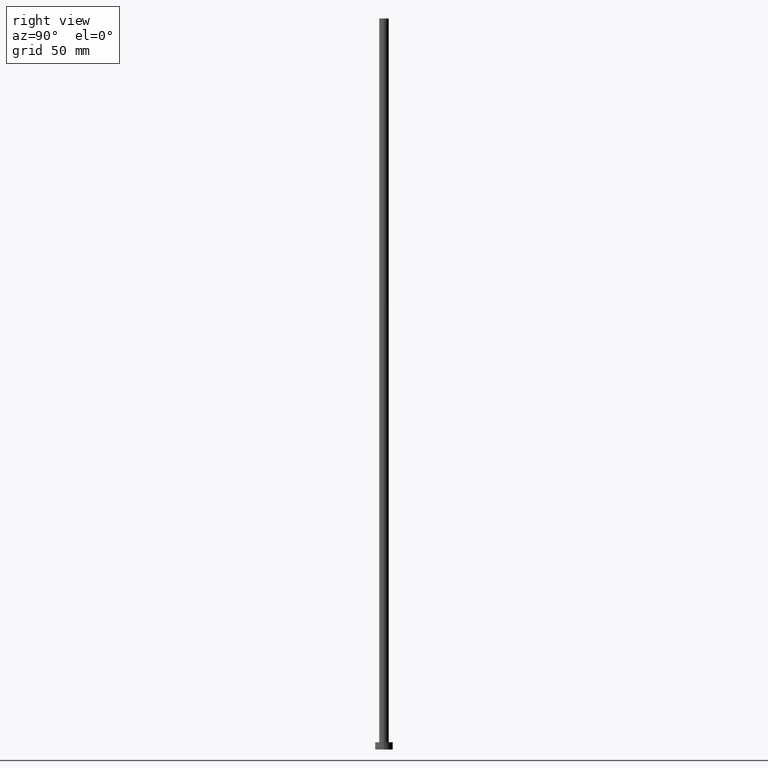
[diagram: clean part render]
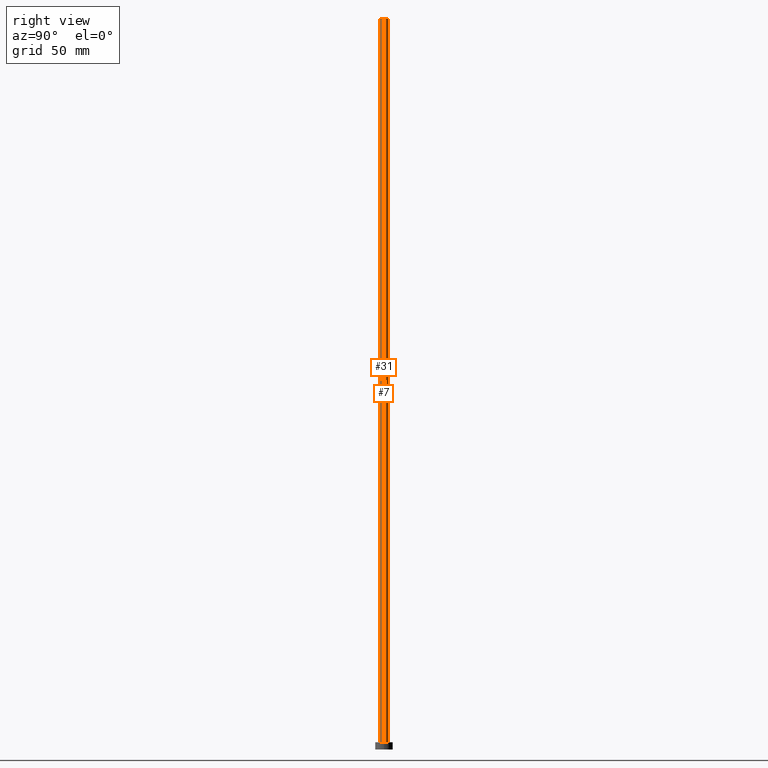
[diagram: same view with one multi-face feature highlighted, each face labeled with its STEP entity id]
A machine part, right view. The highlighted faces form ONE feature: a constant-radius fillet chain: 2 tangent blend faces with common blend radius 3.25 mm. The faces share edges in the B-rep.
Their STEP definitions:
[1] entity #7 (Cylinder):
#7 = ADVANCED_FACE ( 'NONE', ( #66 ), #220, .T. ) ;
#14 = DIRECTION ( 'NONE',  ( -0.000000000000000000, -0.000000000000000000, -1.000000000000000000 ) ) ;
#29 = ORIENTED_EDGE ( 'NONE', *, *, #130, .T. ) ;
#36 = DIRECTION ( 'NONE',  ( 0.000000000000000000, 0.000000000000000000, 1.000000000000000000 ) ) ;
#38 = EDGE_CURVE ( 'NONE', #76, #63, #207, .T. ) ;
#40 = EDGE_LOOP ( 'NONE', ( #133, #81, #29, #147 ) ) ;
#42 = DIRECTION ( 'NONE',  ( 1.000000000000000000, 0.000000000000000000, 0.000000000000000000 ) ) ;
#43 = AXIS2_PLACEMENT_3D ( 'NONE', #182, #36, #105 ) ;
#46 = VECTOR ( 'NONE', #163, 1000.000000000000000 ) ;
#54 = CARTESIAN_POINT ( 'NONE',  ( 3.250000000000000444, 3.980102097228898231E-16, 5.000000000000000000 ) ) ;
#55 = CARTESIAN_POINT ( 'NONE',  ( -3.250000000000000444, 0.000000000000000000, 500.0000000000000000 ) ) ;
#58 = CARTESIAN_POINT ( 'NONE',  ( 3.250000000000000444, 3.980102097228898231E-16, 500.0000000000000000 ) ) ;
#63 = VERTEX_POINT ( 'NONE', #54 ) ;
#66 = FACE_OUTER_BOUND ( 'NONE', #40, .T. ) ;
#75 = CARTESIAN_POINT ( 'NONE',  ( -3.250000000000000444, 0.000000000000000000, 500.0000000000000000 ) ) ;
#76 = VERTEX_POINT ( 'NONE', #58 ) ;
#78 = DIRECTION ( 'NONE',  ( -0.000000000000000000, -0.000000000000000000, -1.000000000000000000 ) ) ;
#81 = ORIENTED_EDGE ( 'NONE', *, *, #38, .T. ) ;
#86 = AXIS2_PLACEMENT_3D ( 'NONE', #196, #78, #153 ) ;
#90 = DIRECTION ( 'NONE',  ( 0.000000000000000000, 0.000000000000000000, 1.000000000000000000 ) ) ;
#97 = VERTEX_POINT ( 'NONE', #55 ) ;
#102 = CIRCLE ( 'NONE', #165, 3.250000000000000444 ) ;
#105 = DIRECTION ( 'NONE',  ( 1.000000000000000000, 0.000000000000000000, 0.000000000000000000 ) ) ;
#130 = EDGE_CURVE ( 'NONE', #63, #199, #140, .T. ) ;
#133 = ORIENTED_EDGE ( 'NONE', *, *, #237, .F. ) ;
#140 = CIRCLE ( 'NONE', #43, 3.250000000000000444 ) ;
#147 = ORIENTED_EDGE ( 'NONE', *, *, #211, .F. ) ;
#153 = DIRECTION ( 'NONE',  ( -1.000000000000000000, 0.000000000000000000, 0.000000000000000000 ) ) ;
#163 = DIRECTION ( 'NONE',  ( -0.000000000000000000, -0.000000000000000000, -1.000000000000000000 ) ) ;
#165 = AXIS2_PLACEMENT_3D ( 'NONE', #168, #90, #42 ) ;
#168 = CARTESIAN_POINT ( 'NONE',  ( 0.000000000000000000, 0.000000000000000000, 500.0000000000000000 ) ) ;
#182 = CARTESIAN_POINT ( 'NONE',  ( 0.000000000000000000, 0.000000000000000000, 5.000000000000000000 ) ) ;
#188 = VECTOR ( 'NONE', #14, 1000.000000000000000 ) ;
#192 = LINE ( 'NONE', #75, #188 ) ;
#196 = CARTESIAN_POINT ( 'NONE',  ( 0.000000000000000000, 0.000000000000000000, 500.0000000000000000 ) ) ;
#199 = VERTEX_POINT ( 'NONE', #231 ) ;
#207 = LINE ( 'NONE', #223, #46 ) ;
#211 = EDGE_CURVE ( 'NONE', #97, #199, #192, .T. ) ;
#220 = CYLINDRICAL_SURFACE ( 'NONE', #86, 3.250000000000000444 ) ;
#223 = CARTESIAN_POINT ( 'NONE',  ( 3.250000000000000444, 3.980102097228898231E-16, 500.0000000000000000 ) ) ;
#231 = CARTESIAN_POINT ( 'NONE',  ( -3.250000000000000444, 0.000000000000000000, 5.000000000000000000 ) ) ;
#237 = EDGE_CURVE ( 'NONE', #76, #97, #102, .T. ) ;
[2] entity #31 (Cylinder):
#1 = EDGE_CURVE ( 'NONE', #97, #76, #206, .T. ) ;
#4 = ORIENTED_EDGE ( 'NONE', *, *, #198, .T. ) ;
#14 = DIRECTION ( 'NONE',  ( -0.000000000000000000, -0.000000000000000000, -1.000000000000000000 ) ) ;
#15 = AXIS2_PLACEMENT_3D ( 'NONE', #101, #47, #174 ) ;
#21 = DIRECTION ( 'NONE',  ( 1.000000000000000000, 0.000000000000000000, 0.000000000000000000 ) ) ;
#31 = ADVANCED_FACE ( 'NONE', ( #219 ), #51, .T. ) ;
#38 = EDGE_CURVE ( 'NONE', #76, #63, #207, .T. ) ;
#46 = VECTOR ( 'NONE', #163, 1000.000000000000000 ) ;
#47 = DIRECTION ( 'NONE',  ( -0.000000000000000000, -0.000000000000000000, -1.000000000000000000 ) ) ;
#51 = CYLINDRICAL_SURFACE ( 'NONE', #15, 3.250000000000000444 ) ;
#54 = CARTESIAN_POINT ( 'NONE',  ( 3.250000000000000444, 3.980102097228898231E-16, 5.000000000000000000 ) ) ;
#55 = CARTESIAN_POINT ( 'NONE',  ( -3.250000000000000444, 0.000000000000000000, 500.0000000000000000 ) ) ;
#58 = CARTESIAN_POINT ( 'NONE',  ( 3.250000000000000444, 3.980102097228898231E-16, 500.0000000000000000 ) ) ;
#63 = VERTEX_POINT ( 'NONE', #54 ) ;
#67 = DIRECTION ( 'NONE',  ( 1.000000000000000000, 0.000000000000000000, 0.000000000000000000 ) ) ;
#75 = CARTESIAN_POINT ( 'NONE',  ( -3.250000000000000444, 0.000000000000000000, 500.0000000000000000 ) ) ;
#76 = VERTEX_POINT ( 'NONE', #58 ) ;
#97 = VERTEX_POINT ( 'NONE', #55 ) ;
#101 = CARTESIAN_POINT ( 'NONE',  ( 0.000000000000000000, 0.000000000000000000, 500.0000000000000000 ) ) ;
#119 = CARTESIAN_POINT ( 'NONE',  ( 0.000000000000000000, 0.000000000000000000, 5.000000000000000000 ) ) ;
#134 = DIRECTION ( 'NONE',  ( 0.000000000000000000, 0.000000000000000000, 1.000000000000000000 ) ) ;
#152 = ORIENTED_EDGE ( 'NONE', *, *, #38, .F. ) ;
#155 = ORIENTED_EDGE ( 'NONE', *, *, #1, .F. ) ;
#163 = DIRECTION ( 'NONE',  ( -0.000000000000000000, -0.000000000000000000, -1.000000000000000000 ) ) ;
#172 = CARTESIAN_POINT ( 'NONE',  ( 0.000000000000000000, 0.000000000000000000, 500.0000000000000000 ) ) ;
#174 = DIRECTION ( 'NONE',  ( -1.000000000000000000, 0.000000000000000000, 0.000000000000000000 ) ) ;
#178 = ORIENTED_EDGE ( 'NONE', *, *, #211, .T. ) ;
#188 = VECTOR ( 'NONE', #14, 1000.000000000000000 ) ;
#192 = LINE ( 'NONE', #75, #188 ) ;
#197 = EDGE_LOOP ( 'NONE', ( #152, #155, #178, #4 ) ) ;
#198 = EDGE_CURVE ( 'NONE', #199, #63, #229, .T. ) ;
#199 = VERTEX_POINT ( 'NONE', #231 ) ;
#201 = AXIS2_PLACEMENT_3D ( 'NONE', #172, #134, #67 ) ;
#203 = DIRECTION ( 'NONE',  ( 0.000000000000000000, 0.000000000000000000, 1.000000000000000000 ) ) ;
#206 = CIRCLE ( 'NONE', #201, 3.250000000000000444 ) ;
#207 = LINE ( 'NONE', #223, #46 ) ;
#211 = EDGE_CURVE ( 'NONE', #97, #199, #192, .T. ) ;
#219 = FACE_OUTER_BOUND ( 'NONE', #197, .T. ) ;
#223 = CARTESIAN_POINT ( 'NONE',  ( 3.250000000000000444, 3.980102097228898231E-16, 500.0000000000000000 ) ) ;
#229 = CIRCLE ( 'NONE', #241, 3.250000000000000444 ) ;
#231 = CARTESIAN_POINT ( 'NONE',  ( -3.250000000000000444, 0.000000000000000000, 5.000000000000000000 ) ) ;
#241 = AXIS2_PLACEMENT_3D ( 'NONE', #119, #203, #21 ) ;